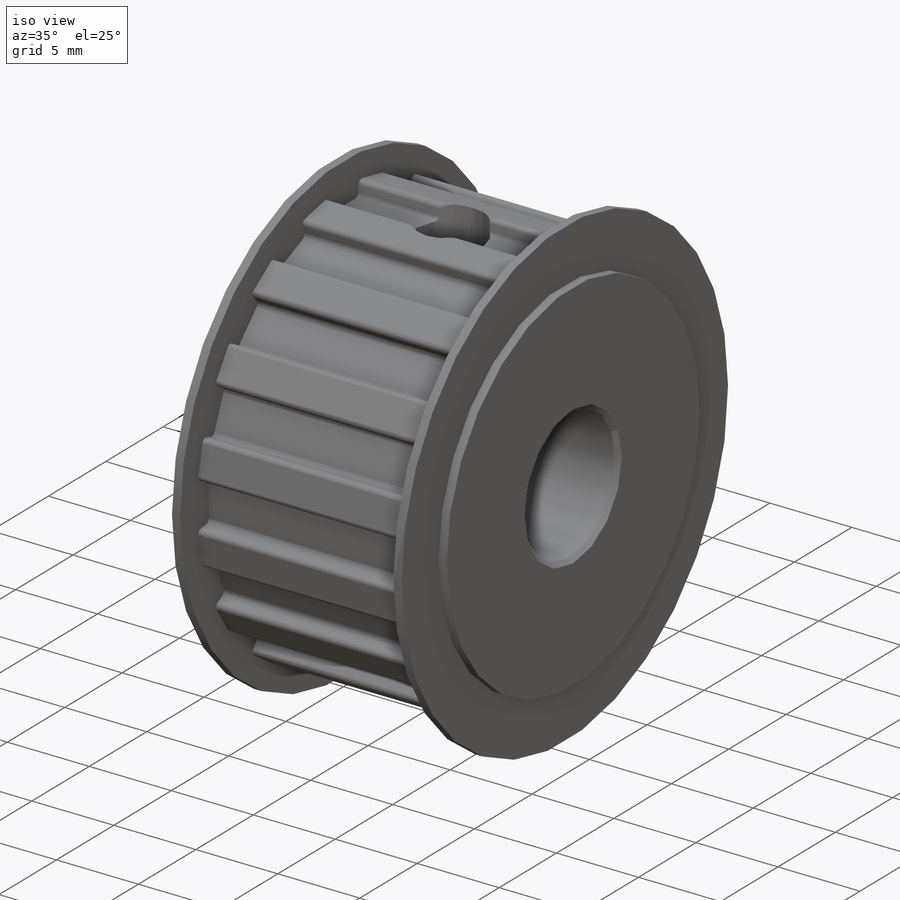
[diagram: iso view]
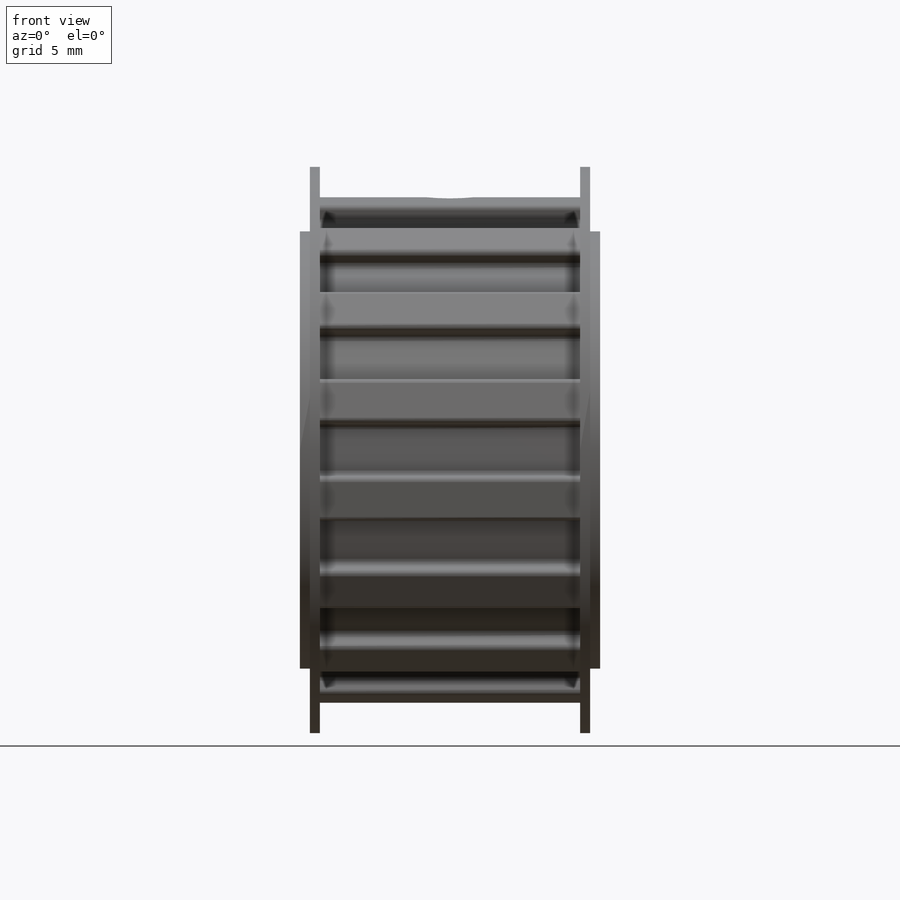
[diagram: front view]
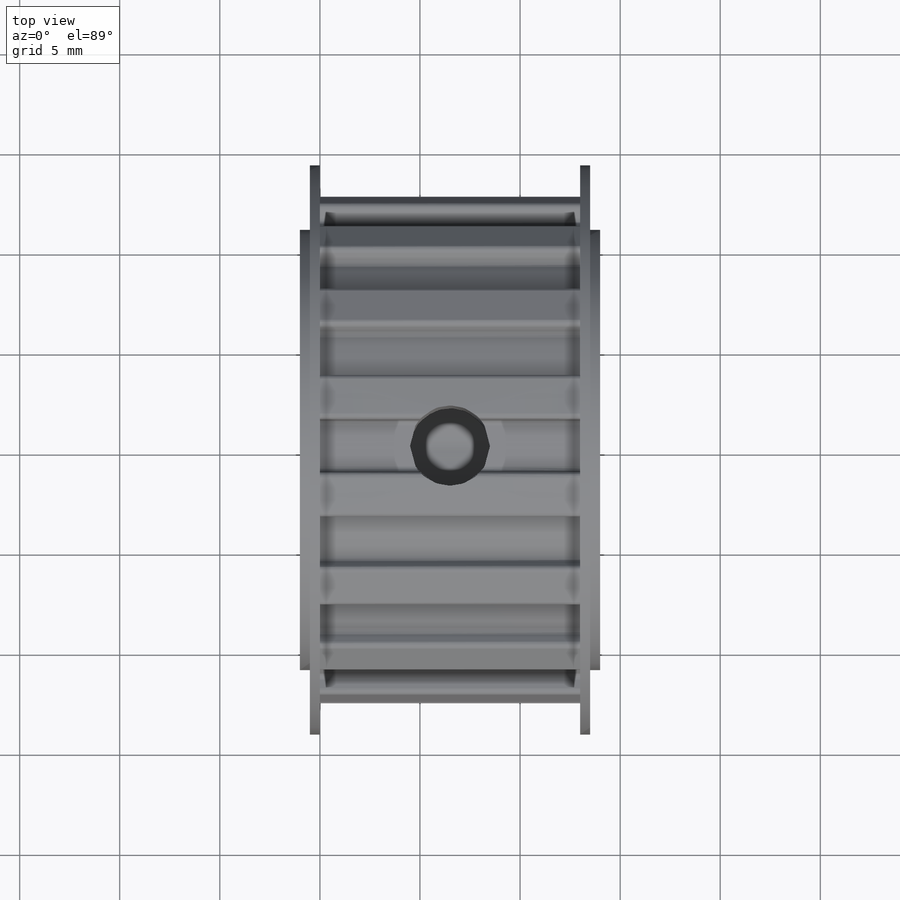
[diagram: top view]
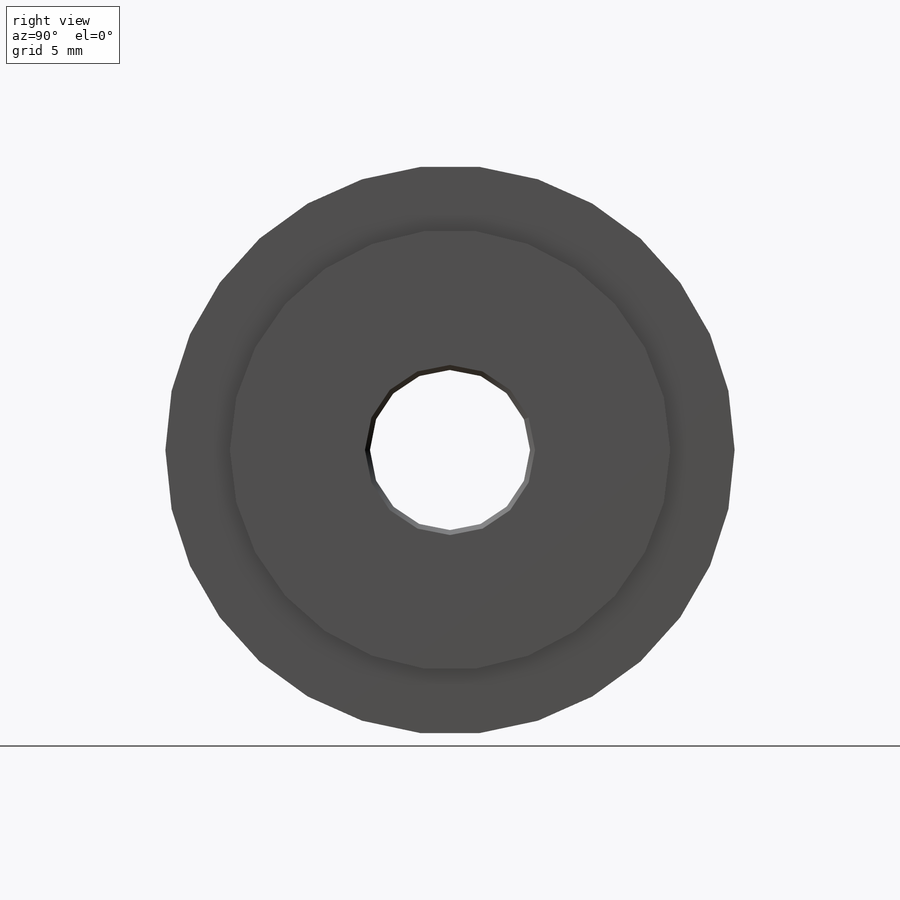
[diagram: right view]
SOLIDWORKS PART (.sldprt)
format: sldprt  version: not decoded by parser v0  size: 529,408 bytes
history: native  units: mm
features: sketch x8, cut_extrude x5, fillet x4, plane x3, extrude x3, chamfer x2, material x1, pattern_circular x1 (+10 scaffold rows collapsed)
feature tree (37):
  scaffold x10  (default folders/planes/origin — collapsed)
  material  "Matériau <non spécifié>"
  plane  "Plan de face"
  plane  "Plan de dessus"
  plane  "Plan de droite"
  sketch  "Esquisse1"  dims[D1=25.46mm]
  extrude  "Extrusion1"  Depth=13mm
  sketch  "Esquisse22"  dims[c1.D1=2.5mm c1.D2=1.25mm c1.D3=1.0mm c1.D4=~1.854647mm c2.D4=180.0deg c2.D5=~1.848487mm c3.D5=180.0deg]
  cut_extrude  "Enlèv. mat.-Extru.2"  [1 undecoded]
  fillet  "Congé1"  Radius=0.25mm
  fillet  "Congé2"  Radius=0.25mm
  fillet  "Congé3"  Radius=0.25mm
  fillet  "Congé4"  Radius=0.25mm
  pattern_circular  "Répétition circulaire1"  Count=16 Angle=360deg
  sketch  "Esquisse23"  dims[D1=28.44mm]
  extrude  "Extrusion2"  Depth=1mm
  sketch  "Esquisse24"  dims[D1=28.44mm]
  extrude  "Extrusion3"  Depth=1mm
  sketch  "Esquisse25"  dims[D1=8.0mm]
  cut_extrude  "Enlèv. mat.-Extru.3"  [1 undecoded]
  sketch  "Esquisse30"  dims[D2=4.0mm D1=6.5mm]
  cut_extrude  "Enlèv. mat.-Extru.5"  [1 undecoded]
  sketch  "Esquisse31"  dims[D1=22.0mm]
  cut_extrude  "Enlèv. mat.-Extru.6"  Depth=0.5mm
  sketch  "Esquisse32"  dims[D1=22.0mm]
  cut_extrude  "Enlèv. mat.-Extru.7"  Depth=0.5mm
  chamfer  "Chanfrein1"  Distance=0.25mm Angle=45deg
  chamfer  "Chanfrein2"  Distance=0.25mm Angle=45deg
decode coverage: 20 of 23 modeling features carry decoded parameters
note: ~ marks probable driven/reference dimensions
note: 3 parameter values undecoded
summary: no parameter record found for 3 features
note: suppression state not decoded; provenance and decode notes live in map.json
